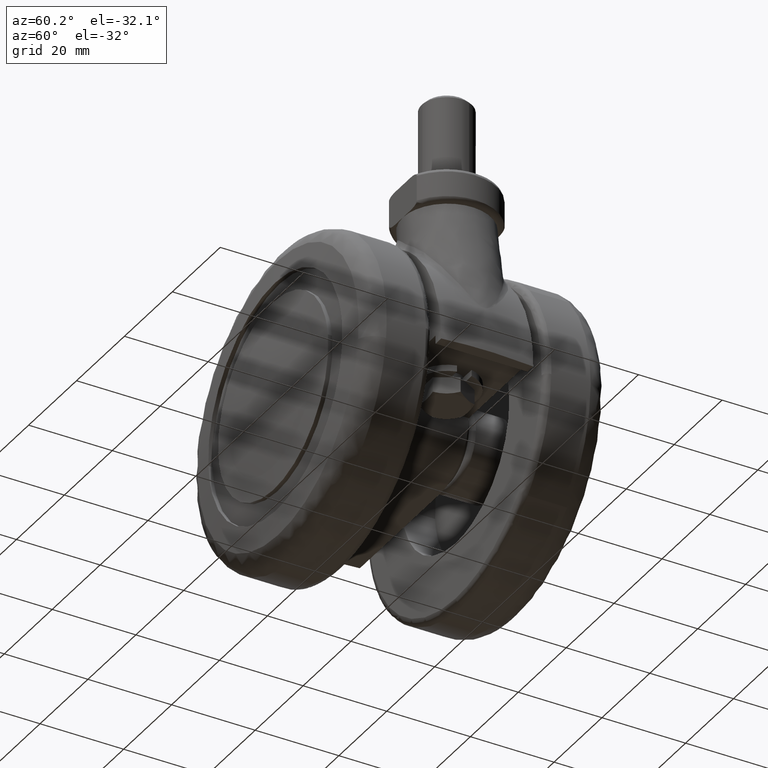
[diagram: clean part render]
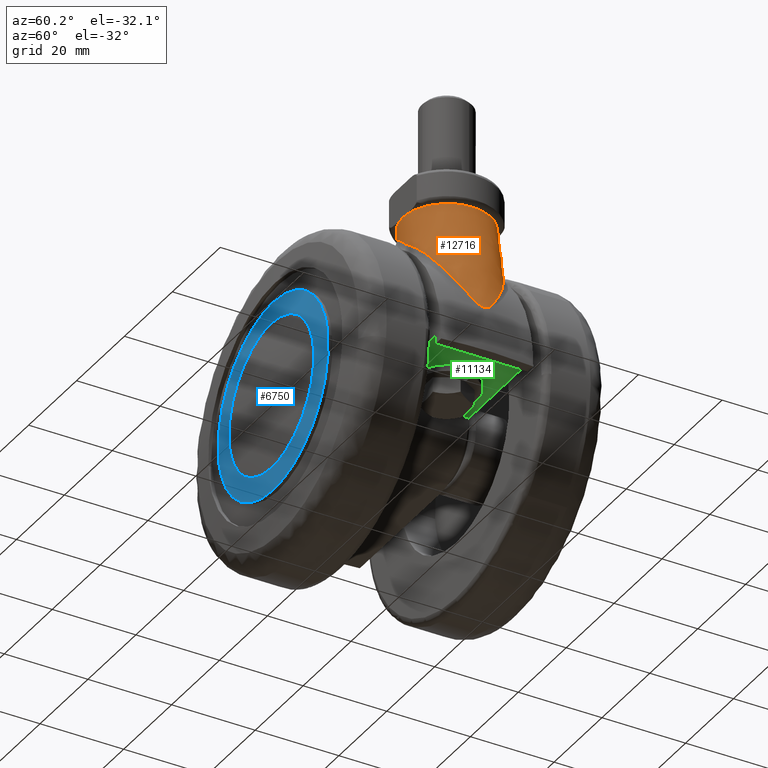
[diagram: same view with three faces highlighted in distinct colors, each labeled with its STEP entity id]
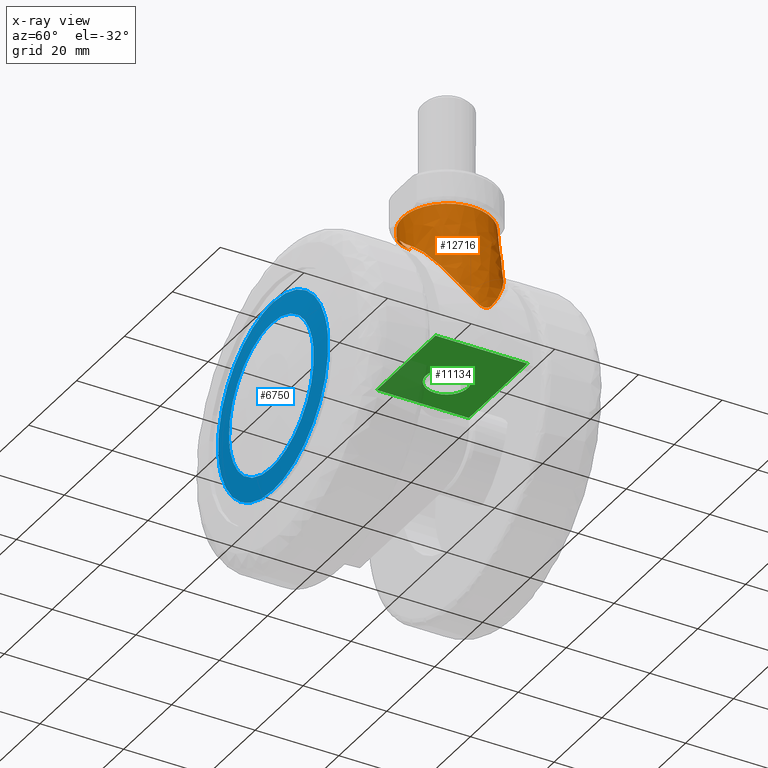
[diagram: x-ray of the same camera — body ghosted, the three highlighted faces saturated]
A machine part, auxiliary view with three faces highlighted in distinct colors.
The next image is the same camera in x-ray (body ghosted, the three faces saturated) — at least one of them is partly hidden behind the body in this view.
Their STEP definitions:

[orange] entity #12716 — the highlighted face is a freeform B-spline surface patch.
#11209=CARTESIAN_POINT('',(9.734874135307969,2.875159400437090,39.0));
#11210=VERTEX_POINT('',#11209);
#11247=CARTESIAN_POINT('',(9.734874135308280,-2.875159400438115,39.0));
#11248=VERTEX_POINT('',#11247);
#11380=CARTESIAN_POINT('',(15.834273644007199,-9.424800640168330,36.042992598005412));
#11381=VERTEX_POINT('',#11380);
#11397=CARTESIAN_POINT('',(9.734874135308280,-2.875159400438115,39.0));
#11398=CARTESIAN_POINT('',(9.765014946852586,-2.971725987100927,38.987961932139498));
#11399=CARTESIAN_POINT('',(9.796699416023380,-3.067957749255542,38.975272131350849));
#11400=CARTESIAN_POINT('',(9.863174507820219,-3.259745863016546,38.948558339544078));
#11401=CARTESIAN_POINT('',(9.898041406330020,-3.355497784002150,38.934503446514952));
#11402=CARTESIAN_POINT('',(10.006728428578230,-3.640148634965251,38.890530961459071));
#11403=CARTESIAN_POINT('',(10.084478166912660,-3.826137806987287,38.858870211924213));
#11404=CARTESIAN_POINT('',(10.332785888984800,-4.373272351155762,38.756894622463513));
#11405=CARTESIAN_POINT('',(10.518355652744630,-4.723619845631813,38.679613890553057));
#11406=CARTESIAN_POINT('',(10.926585075179609,-5.397147074816104,38.505940396580783));
#11407=CARTESIAN_POINT('',(11.149259347742349,-5.720317123013894,38.409544060022732));
#11408=CARTESIAN_POINT('',(11.509890872524030,-6.185149551346111,38.249585396609803));
#11409=CARTESIAN_POINT('',(11.634547182277871,-6.336766173946026,38.193698887509989));
#11410=CARTESIAN_POINT('',(11.828122530780670,-6.559198968923881,38.105833937558728));
#11411=CARTESIAN_POINT('',(11.893575072163550,-6.632308580095542,38.075950026399113));
#11412=CARTESIAN_POINT('',(12.025779794831941,-6.775953905039536,38.015215864299982));
#11413=CARTESIAN_POINT('',(12.092608204217830,-6.846577595190703,37.984331051875913));
#11414=CARTESIAN_POINT('',(12.430248689094460,-7.193857892863472,37.827311391866182));
#11415=CARTESIAN_POINT('',(12.711520939718110,-7.453052229230631,37.693405138172643));
#11416=CARTESIAN_POINT('',(13.293633666889081,-7.937272633191943,37.408568752348373));
#11417=CARTESIAN_POINT('',(13.594484183909090,-8.162284788316734,37.257635878864043));
#11418=CARTESIAN_POINT('',(14.058920017241670,-8.475670662809202,37.017877502471123));
#11419=CARTESIAN_POINT('',(14.215929892272550,-8.576103517511875,36.935729142439747));
#11420=CARTESIAN_POINT('',(14.454585433310600,-8.720843212216183,36.809069559548931));
#11421=CARTESIAN_POINT('',(14.534762874890280,-8.768162339423656,36.766221692821219));
#11422=CARTESIAN_POINT('',(14.695598953699900,-8.860539796690857,36.679655454487850));
#11423=CARTESIAN_POINT('',(14.776209515660611,-8.905574575668155,36.635963875234751));
#11424=CARTESIAN_POINT('',(15.180156851201581,-9.125156029700733,36.415462183829163));
#11425=CARTESIAN_POINT('',(15.506162540292291,-9.282971687857856,36.232525502262099));
#11426=CARTESIAN_POINT('',(15.834273644007190,-9.424800640168330,36.042992598005377));
#11427=B_SPLINE_CURVE_WITH_KNOTS('',3,(#11397,#11398,#11399,#11400,#11401,#11402,#11403,#11404,#11405,#11406,#11407,#11408,#11409,#11410,#11411,#11412,#11413,#11414,#11415,#11416,#11417,#11418,#11419,#11420,#11421,#11422,#11423,#11424,#11425,#11426),.UNSPECIFIED.,.F.,.U.,(4,2,2,2,2,2,2,2,2,2,2,2,2,2,4),(0.0,0.031250000000000,0.062500000000000,0.125000000000000,0.250000000000000,0.375000000000000,0.437500000000000,0.468750000000001,0.500000000000001,0.625000000000001,0.750000000000002,0.812500000000003,0.843750000000003,0.875000000000003,1.0),.UNSPECIFIED.);
#11428=EDGE_CURVE('',#11248,#11381,#11427,.T.);
#11563=CARTESIAN_POINT('',(15.834272163024050,9.424800000000001,36.042993453493153));
#11564=VERTEX_POINT('',#11563);
#11616=CARTESIAN_POINT('',(15.834272163024030,9.424800000000031,36.042993453493139));
#11617=CARTESIAN_POINT('',(15.507307004264360,9.283466341797638,36.231864388182878));
#11618=CARTESIAN_POINT('',(15.183217956223659,9.126588671450643,36.413732003489862));
#11619=CARTESIAN_POINT('',(14.542307384382291,8.778655094792176,36.763701596248048));
#11620=CARTESIAN_POINT('',(14.225479566498890,8.587615547346342,36.931805288436969));
#11621=CARTESIAN_POINT('',(13.757141502596960,8.272252911238834,37.173708558238673));
#11622=CARTESIAN_POINT('',(13.602896192294541,8.162792457947649,37.252264001329451));
#11623=CARTESIAN_POINT('',(13.298873120510450,7.935196166215691,37.405057824339643));
#11624=CARTESIAN_POINT('',(13.149648062189900,7.817479162857781,37.479019873976704));
#11625=CARTESIAN_POINT('',(12.710647610550110,7.452368673953901,37.693838785172048));
#11626=CARTESIAN_POINT('',(12.429523251913780,7.193045679702175,37.827641975410202));
#11627=CARTESIAN_POINT('',(11.892529837133189,6.640852731537313,38.077384226820762));
#11628=CARTESIAN_POINT('',(11.636648015730801,6.347997167485482,38.193326844980398));
#11629=CARTESIAN_POINT('',(11.274060772394190,5.881437445221686,38.354205244321427));
#11630=CARTESIAN_POINT('',(11.156487775333989,5.720934618763776,38.405764140315988));
#11631=CARTESIAN_POINT('',(10.931703898116970,5.394521469722281,38.503345159788402));
#11632=CARTESIAN_POINT('',(10.824167740370379,5.228237964098526,38.549514434549387));
#11633=CARTESIAN_POINT('',(10.516319186505450,4.720125799719843,38.680475196407713));
#11634=CARTESIAN_POINT('',(10.330719855956330,4.369066170604384,38.757749469488267));
#11635=CARTESIAN_POINT('',(10.083301114738109,3.823368784489873,38.859350381706143));
#11636=CARTESIAN_POINT('',(10.006002576978270,3.638277734453351,38.890824975990952));
#11637=CARTESIAN_POINT('',(9.898124002622998,3.355698993728345,38.934469853992752));
#11638=CARTESIAN_POINT('',(9.863510252711381,3.260681806607597,38.948423123941588));
#11639=CARTESIAN_POINT('',(9.797037506755521,3.068965567155710,38.975136555289090));
#11640=CARTESIAN_POINT('',(9.765141817261602,2.972132460640318,38.987911260823253));
#11641=CARTESIAN_POINT('',(9.734874135307935,2.875159400437097,38.999999999999979));
#11642=B_SPLINE_CURVE_WITH_KNOTS('',3,(#11616,#11617,#11618,#11619,#11620,#11621,#11622,#11623,#11624,#11625,#11626,#11627,#11628,#11629,#11630,#11631,#11632,#11633,#11634,#11635,#11636,#11637,#11638,#11639,#11640,#11641),.UNSPECIFIED.,.F.,.U.,(4,2,2,2,2,2,2,2,2,2,2,2,4),(0.0,0.125000000000000,0.250000000000000,0.312500000000000,0.375000000000000,0.499999999999999,0.624999999999999,0.687499999999999,0.749999999999999,0.875000000000000,0.937500000000000,0.968750000000000,1.0),.UNSPECIFIED.);
#11643=EDGE_CURVE('',#11564,#11210,#11642,.T.);
#11778=CARTESIAN_POINT('',(26.877747129820001,-9.424800640175180,27.080546258881650));
#11779=VERTEX_POINT('',#11778);
#11793=CARTESIAN_POINT('',(15.834273644007199,-9.424800640168330,36.042992598005412));
#11794=CARTESIAN_POINT('',(15.957821354711440,-9.478205239416715,35.971625429012043));
#11795=CARTESIAN_POINT('',(16.080474879437510,-9.528550747649826,35.896862832956977));
#11796=CARTESIAN_POINT('',(16.324467108684779,-9.623992687113347,35.741863585670067));
#11797=CARTESIAN_POINT('',(16.445983128545819,-9.669145522698260,35.661493388375632));
#11798=CARTESIAN_POINT('',(16.807137740395639,-9.796993914353118,35.414900180527688));
#11799=CARTESIAN_POINT('',(17.043792159563601,-9.872324009430907,35.243068456802533));
#11800=CARTESIAN_POINT('',(17.511979131786639,-10.007517437380070,34.889408490841298));
#11801=CARTESIAN_POINT('',(17.743479453118120,-10.067340560872999,34.707530818160052));
#11802=CARTESIAN_POINT('',(18.203417960249471,-10.174012160180320,34.336919483093517));
#11803=CARTESIAN_POINT('',(18.431842068133388,-10.220845274567351,34.148164750146591));
#11804=CARTESIAN_POINT('',(19.115173493928289,-10.344224146907150,33.575455915896342));
#11805=CARTESIAN_POINT('',(19.568077975353820,-10.403924809309640,33.185045392206490));
#11806=CARTESIAN_POINT('',(20.254297257199109,-10.463318131576340,32.600818806073363));
#11807=CARTESIAN_POINT('',(20.484200670487759,-10.478015731930860,32.406315361619733));
#11808=CARTESIAN_POINT('',(20.948082477971621,-10.496936920969111,32.019887235590367));
#11809=CARTESIAN_POINT('',(21.181613247936081,-10.501128212349981,31.828390078726208));
#11810=CARTESIAN_POINT('',(21.651974266879410,-10.498353798498240,31.450719061633372));
#11811=CARTESIAN_POINT('',(21.888948934563899,-10.491378916135430,31.264461591440689));
#11812=CARTESIAN_POINT('',(22.366058364612499,-10.465482318906830,30.896595462039809));
#11813=CARTESIAN_POINT('',(22.606185940065220,-10.446543312471061,30.714978512259570));
#11814=CARTESIAN_POINT('',(23.087628156215491,-10.396226099192480,30.353899025347740));
#11815=CARTESIAN_POINT('',(23.328820060684759,-10.364833037135890,30.174466953646689));
#11816=CARTESIAN_POINT('',(23.807325686735791,-10.290260054598820,29.815524759570071));
#11817=CARTESIAN_POINT('',(24.044856317711229,-10.247063046173491,29.635799242685401));
#11818=CARTESIAN_POINT('',(24.513553743951650,-10.150110281188031,29.272082182400400));
#11819=CARTESIAN_POINT('',(24.744711185984290,-10.096363775777590,29.088077066893941));
#11820=CARTESIAN_POINT('',(25.198355848847431,-9.980108177675335,28.712597097372079));
#11821=CARTESIAN_POINT('',(25.420844559444390,-9.917606668684879,28.521121735042559));
#11822=CARTESIAN_POINT('',(26.072977574327620,-9.720033512811925,27.931885441177410));
#11823=CARTESIAN_POINT('',(26.487067933749760,-9.574930112454259,27.519047386537139));
#11824=CARTESIAN_POINT('',(26.877747129820001,-9.424800640175189,27.080546258881650));
#11825=B_SPLINE_CURVE_WITH_KNOTS('',3,(#11793,#11794,#11795,#11796,#11797,#11798,#11799,#11800,#11801,#11802,#11803,#11804,#11805,#11806,#11807,#11808,#11809,#11810,#11811,#11812,#11813,#11814,#11815,#11816,#11817,#11818,#11819,#11820,#11821,#11822,#11823,#11824),.UNSPECIFIED.,.F.,.U.,(4,2,2,2,2,2,2,2,2,2,2,2,2,2,2,4),(0.0,0.031250000000000,0.062500000000000,0.125000000000001,0.187500000000001,0.250000000000002,0.375000000000001,0.437500000000001,0.500000000000001,0.562500000000001,0.625000000000001,0.687500000000000,0.750000000000000,0.812500000000000,0.875000000000000,1.0),.UNSPECIFIED.);
#11826=EDGE_CURVE('',#11381,#11779,#11825,.T.);
#11973=CARTESIAN_POINT('',(26.877748795748751,9.424799999995100,27.080544389031001));
#11974=VERTEX_POINT('',#11973);
#12004=CARTESIAN_POINT('',(26.877748795748751,9.424799999995100,27.080544389031001));
#12005=CARTESIAN_POINT('',(26.682718876187860,9.499745755344520,27.299447416595552));
#12006=CARTESIAN_POINT('',(26.481465353257661,9.573607309741529,27.512523616480969));
#12007=CARTESIAN_POINT('',(26.066787894455910,9.717050936288310,27.928022532611632));
#12008=CARTESIAN_POINT('',(25.853336953272510,9.786636509087694,28.130457885396108));
#12009=CARTESIAN_POINT('',(25.415140902445700,9.919273914150599,28.526157222115760));
#12010=CARTESIAN_POINT('',(25.191329411526930,9.982033202201258,28.718577423111249));
#12011=CARTESIAN_POINT('',(24.736054925331111,10.098453424623250,29.095071037110859));
#12012=CARTESIAN_POINT('',(24.504592552751919,10.152107174813739,29.279146244065000));
#12013=CARTESIAN_POINT('',(23.802351257756559,10.296932086798259,29.823760043387740));
#12014=CARTESIAN_POINT('',(23.323760361359810,10.371564941290799,30.176796451656120));
#12015=CARTESIAN_POINT('',(22.607686369263920,10.446377572934701,30.713854826430779));
#12016=CARTESIAN_POINT('',(22.369313103663561,10.465227416849320,30.894130738877660));
#12017=CARTESIAN_POINT('',(21.895170549245559,10.491117921585261,31.259619758134068));
#12018=CARTESIAN_POINT('',(21.659410274425799,10.498175090193710,31.444841883717320));
#12019=CARTESIAN_POINT('',(21.191001632184989,10.501202925716020,31.820760718128330));
#12020=CARTESIAN_POINT('',(20.958337976881040,10.497188361497100,32.011436115512872));
#12021=CARTESIAN_POINT('',(20.495219450878022,10.478624543567680,32.397047634650313));
#12022=CARTESIAN_POINT('',(20.264490430559849,10.464058058363230,32.592173348219930));
#12023=CARTESIAN_POINT('',(19.575056798251069,10.404805123758200,33.179039204875792));
#12024=CARTESIAN_POINT('',(19.119591456805122,10.344987543313650,33.571736357177272));
#12025=CARTESIAN_POINT('',(18.545917480104329,10.241450666327291,34.052560535722492));
#12026=CARTESIAN_POINT('',(18.430967173202362,10.219280366301239,34.148220694782999));
#12027=CARTESIAN_POINT('',(18.200396153839350,10.171823899536180,34.338215933835301));
#12028=CARTESIAN_POINT('',(18.084732315139700,10.146526009898849,34.432585002583458));
#12029=CARTESIAN_POINT('',(17.737271274486101,10.065818068179340,34.712469915354831));
#12030=CARTESIAN_POINT('',(17.504757973977451,10.005578655706380,34.895009630076260));
#12031=CARTESIAN_POINT('',(17.036261468500431,9.869998355577170,35.248605640971391));
#12032=CARTESIAN_POINT('',(16.800301283999531,9.794688050880897,35.419707433083893));
#12033=CARTESIAN_POINT('',(16.322589059547440,9.625347514085167,35.745603354388983));
#12034=CARTESIAN_POINT('',(16.080902121114949,9.531408038396261,35.900528027256840));
#12035=CARTESIAN_POINT('',(15.834272163024050,9.424799999999999,36.042993453493153));
#12036=B_SPLINE_CURVE_WITH_KNOTS('',3,(#12004,#12005,#12006,#12007,#12008,#12009,#12010,#12011,#12012,#12013,#12014,#12015,#12016,#12017,#12018,#12019,#12020,#12021,#12022,#12023,#12024,#12025,#12026,#12027,#12028,#12029,#12030,#12031,#12032,#12033,#12034,#12035),.UNSPECIFIED.,.F.,.U.,(4,2,2,2,2,2,2,2,2,2,2,2,2,2,2,4),(0.0,0.062500000000000,0.125000000000000,0.187500000000000,0.249999999999999,0.374999999999999,0.437500000000000,0.499999999999999,0.562499999999999,0.624999999999999,0.749999999999999,0.781249999999999,0.812499999999999,0.874999999999999,0.937500000000000,1.0),.UNSPECIFIED.);
#12037=EDGE_CURVE('',#11974,#11564,#12036,.T.);
#12417=CARTESIAN_POINT('',(26.877747129820008,-9.424800640175176,27.080546258881661));
#12418=CARTESIAN_POINT('',(27.431538442782720,-9.211990753977187,26.458966855845620));
#12419=CARTESIAN_POINT('',(27.964202587116660,-8.973502268622996,25.825171062186168));
#12420=CARTESIAN_POINT('',(28.604584162462050,-8.647189486484791,25.017391968762102));
#12421=CARTESIAN_POINT('',(28.731483164926789,-8.580455529879796,24.854930197936248));
#12422=CARTESIAN_POINT('',(28.981951110527600,-8.444668674251791,24.529490922650950));
#12423=CARTESIAN_POINT('',(29.105589420005320,-8.375583818275683,24.366429850494580));
#12424=CARTESIAN_POINT('',(29.471822995071939,-8.164898623419768,23.876211893973640));
#12425=CARTESIAN_POINT('',(29.709739943627682,-8.019872923363041,23.548019389902990));
#12426=CARTESIAN_POINT('',(30.405501028872120,-7.572039584883481,22.559247660703800));
#12427=CARTESIAN_POINT('',(30.845394492563749,-7.256559592287999,21.894454684848021));
#12428=CARTESIAN_POINT('',(31.680096981457069,-6.594809048670595,20.553756699998900));
#12429=CARTESIAN_POINT('',(32.074902435686070,-6.248579766389152,19.877828519127441));
#12430=CARTESIAN_POINT('',(32.821011611255983,-5.525273461557999,18.515830668020708));
#12431=CARTESIAN_POINT('',(33.172329845116813,-5.148372155787472,17.829680010591371));
#12432=CARTESIAN_POINT('',(33.666881889292021,-4.555450108878508,16.795229030595301));
#12433=CARTESIAN_POINT('',(33.826317809313068,-4.353161984810021,16.449561672571068));
#12434=CARTESIAN_POINT('',(34.057216968387202,-4.041137503705516,15.930533042039110));
#12435=CARTESIAN_POINT('',(34.132863893716021,-3.935602190719856,15.757303619787841));
#12436=CARTESIAN_POINT('',(34.281016338526690,-3.721695765924499,15.411684052932740));
#12437=CARTESIAN_POINT('',(34.353520631630232,-3.613336033889618,15.239302616754610));
#12438=CARTESIAN_POINT('',(34.566222244021539,-3.283226178871517,14.724001996539361));
#12439=CARTESIAN_POINT('',(34.701648171116481,-3.056667706511357,14.382778651070771));
#12440=CARTESIAN_POINT('',(34.894342094140931,-2.701091745995821,13.878481767676639));
#12441=CARTESIAN_POINT('',(34.956825466216557,-2.579903623405108,13.711665614736511));
#12442=CARTESIAN_POINT('',(35.077971871825028,-2.330213766607822,13.381933413613741));
#12443=CARTESIAN_POINT('',(35.136641673410637,-2.201748444029421,13.218993240507880));
#12444=CARTESIAN_POINT('',(35.249576827492362,-1.934088800688256,12.899295393268689));
#12445=CARTESIAN_POINT('',(35.303861760722199,-1.794997416866220,12.742469688979419));
#12446=CARTESIAN_POINT('',(35.368217632899643,-1.610230814857686,12.553094733965359));
#12447=CARTESIAN_POINT('',(35.380911230217620,-1.572718728327919,12.515561634184751));
#12448=CARTESIAN_POINT('',(35.405910720135907,-1.496398779252959,12.441297537588930));
#12449=CARTESIAN_POINT('',(35.418020964106447,-1.458199946100822,12.405149484725991));
#12450=CARTESIAN_POINT('',(35.453691948504670,-1.341565761685799,12.298201919726941));
#12451=CARTESIAN_POINT('',(35.476420259459381,-1.261646798127146,12.229406438960821));
#12452=CARTESIAN_POINT('',(35.519289239817176,-1.096013088224957,12.098598698932131));
#12453=CARTESIAN_POINT('',(35.539436255438687,-1.010315780983556,12.036565557280770));
#12454=CARTESIAN_POINT('',(35.567136391223393,-0.875701160165791,11.950680440214260));
#12455=CARTESIAN_POINT('',(35.575946885378023,-0.829810186276578,11.923255763860720));
#12456=CARTESIAN_POINT('',(35.592574041143003,-0.735558819740049,11.871332191317340));
#12457=CARTESIAN_POINT('',(35.600354976354772,-0.687362793959521,11.846944474813430));
#12458=CARTESIAN_POINT('',(35.621606953361990,-0.540805455704454,11.780154126468251));
#12459=CARTESIAN_POINT('',(35.633115029512680,-0.439894444457601,11.743727535161460));
#12460=CARTESIAN_POINT('',(35.645244239294229,-0.282151516227890,11.705247612194620));
#12461=CARTESIAN_POINT('',(35.648434303076847,-0.228140666050046,11.695105868471780));
#12462=CARTESIAN_POINT('',(35.652763559126470,-0.120326570985241,11.681334893076240));
#12463=CARTESIAN_POINT('',(35.655091479442483,-0.012414598757058,11.673920024388311));
#12464=CARTESIAN_POINT('',(35.653379898782369,0.095695463206858,11.679372466048250));
#12465=CARTESIAN_POINT('',(35.649642918377737,0.203904650513568,11.691262529394360));
#12466=CARTESIAN_POINT('',(35.646742690597392,0.258172001876218,11.700486541995209));
#12467=CARTESIAN_POINT('',(35.635320981754923,0.417763529179566,11.736739591887710));
#12468=CARTESIAN_POINT('',(35.624237780899662,0.519053412661900,11.771844652234931));
#12469=CARTESIAN_POINT('',(35.596879178469003,0.714214608126808,11.857901044839320));
#12470=CARTESIAN_POINT('',(35.580585513783362,0.808108924292738,11.908906042575021));
#12471=CARTESIAN_POINT('',(35.543942657962333,0.990179285052904,12.022652358762860));
#12472=CARTESIAN_POINT('',(35.523761636809468,1.077476388913930,12.084866441674780));
#12473=CARTESIAN_POINT('',(35.480947814145189,1.245172783340882,12.215660554732180));
#12474=CARTESIAN_POINT('',(35.458276699272787,1.325749483891231,12.284362802042629));
#12475=CARTESIAN_POINT('',(35.410912067271347,1.482121665265557,12.426539637664630));
#12476=CARTESIAN_POINT('',(35.386214902507419,1.557905335473423,12.500026462926160));
#12477=CARTESIAN_POINT('',(35.335111577677232,1.705810873732908,12.650601882537149));
#12478=CARTESIAN_POINT('',(35.308763989078457,1.777747623143219,12.727517222777919));
#12479=CARTESIAN_POINT('',(35.254854318391253,1.918079165636043,12.883342488891300));
#12480=CARTESIAN_POINT('',(35.227263317727733,1.986549933592995,12.962338308113461));
#12481=CARTESIAN_POINT('',(35.142778291691187,2.187928025212838,13.201831102181551));
#12482=CARTESIAN_POINT('',(35.084182961239861,2.316856596977297,13.364794262256330));
#12483=CARTESIAN_POINT('',(34.963074996485723,2.567524465172267,13.694866985063010));
#12484=CARTESIAN_POINT('',(34.900555304814063,2.689227999900667,13.862001739584970));
#12485=CARTESIAN_POINT('',(34.707609414133422,3.046410352024187,14.367586642073720));
#12486=CARTESIAN_POINT('',(34.571752802226420,3.274201787549714,14.710258865316010));
#12487=CARTESIAN_POINT('',(34.288069493437490,3.715339576600409,15.398198998860909));
#12488=CARTESIAN_POINT('',(34.140082122857471,3.928812709793438,15.743932678077041));
#12489=CARTESIAN_POINT('',(33.909178162264752,4.241351994539437,16.263459606894688));
#12490=CARTESIAN_POINT('',(33.830719327983530,4.344229585799865,16.436802820028451));
#12491=CARTESIAN_POINT('',(33.670835731075947,4.547667035015350,16.783653205842999));
#12492=CARTESIAN_POINT('',(33.589421854072420,4.648208145568536,16.957132928914579));
#12493=CARTESIAN_POINT('',(33.175826281998312,5.144602696009164,17.822825061016552));
#12494=CARTESIAN_POINT('',(32.823463147485157,5.522788738589746,18.511223609952982));
#12495=CARTESIAN_POINT('',(32.075729280058567,6.247885830936366,19.876450424017161));
#12496=CARTESIAN_POINT('',(31.680343243807020,6.594612658503806,20.553359710029738));
#12497=CARTESIAN_POINT('',(30.845191428148681,7.256721735154597,21.894782290279160));
#12498=CARTESIAN_POINT('',(30.405428036939281,7.572059876591542,22.559318776025570));
#12499=CARTESIAN_POINT('',(29.479036670757431,8.168393969164134,23.875912892376810));
#12500=CARTESIAN_POINT('',(28.992421027983280,8.449392945262121,24.527976763812401));
#12501=CARTESIAN_POINT('',(28.352464205908571,8.775701497513698,25.335465013284331));
#12502=CARTESIAN_POINT('',(28.222797754502910,8.839750526720344,25.496690012436598));
#12503=CARTESIAN_POINT('',(27.960608976820659,8.965035527062273,25.817904851214958));
#12504=CARTESIAN_POINT('',(27.828260137555080,9.026191393719129,25.977685420690118));
#12505=CARTESIAN_POINT('',(27.427425778246128,9.205066688061944,26.454558490136790));
#12506=CARTESIAN_POINT('',(27.155154133149100,9.318199163588842,26.769182581795860));
#12507=CARTESIAN_POINT('',(26.877748795748719,9.424799999995120,27.080544389031012));
#12508=B_SPLINE_CURVE_WITH_KNOTS('',3,(#12417,#12418,#12419,#12420,#12421,#12422,#12423,#12424,#12425,#12426,#12427,#12428,#12429,#12430,#12431,#12432,#12433,#12434,#12435,#12436,#12437,#12438,#12439,#12440,#12441,#12442,#12443,#12444,#12445,#12446,#12447,#12448,#12449,#12450,#12451,#12452,#12453,#12454,#12455,#12456,#12457,#12458,#12459,#12460,#12461,#12462,#12463,#12464,#12465,#12466,#12467,#12468,#12469,#12470,#12471,#12472,#12473,#12474,#12475,#12476,#12477,#12478,#12479,#12480,#12481,#12482,#12483,#12484,#12485,#12486,#12487,#12488,#12489,#12490,#12491,#12492,#12493,#12494,#12495,#12496,#12497,#12498,#12499,#12500,#12501,#12502,#12503,#12504,#12505,#12506,#12507),.UNSPECIFIED.,.F.,.U.,(4,2,2,2,2,2,2,2,2,2,2,2,2,2,2,2,2,2,2,2,2,2,2,1,2,2,2,2,2,2,2,2,2,2,2,2,2,2,2,2,2,2,2,2,2,4),(0.0,0.062500000000000,0.078125000000000,0.093750000000001,0.125000000000001,0.187500000000002,0.250000000000002,0.312500000000003,0.343750000000004,0.359375000000004,0.375000000000004,0.406250000000004,0.421875000000004,0.437500000000004,0.453125000000004,0.457031250000004,0.460937500000004,0.468750000000004,0.476562500000004,0.480468750000004,0.484375000000004,0.492187500000004,0.496093750000004,0.500000000000004,0.503906250000004,0.507812500000004,0.515625000000004,0.523437500000004,0.531250000000004,0.539062500000004,0.546875000000004,0.554687500000004,0.562500000000004,0.578125000000003,0.593750000000003,0.625000000000003,0.656250000000003,0.671875000000003,0.687500000000003,0.750000000000002,0.812500000000002,0.875000000000001,0.937500000000001,0.953125000000001,0.968750000000000,1.0),.UNSPECIFIED.);
#12509=EDGE_CURVE('',#11779,#11974,#12508,.T.);
#12520=CARTESIAN_POINT('',(9.734874135308228,-2.875159400438114,39.0));
#12521=CARTESIAN_POINT('',(12.277823730973108,-11.662172655083738,39.0));
#12522=CARTESIAN_POINT('',(21.475438907018340,-10.399187534074770,39.0));
#12523=CARTESIAN_POINT('',(30.673054083063175,-9.136202413065858,39.0));
#12524=CARTESIAN_POINT('',(30.673054083063182,4.637220E-013,39.0));
#12525=CARTESIAN_POINT('',(30.673054083063175,9.136202413066656,39.0));
#12526=CARTESIAN_POINT('',(21.475438907017431,10.399187534074899,39.0));
#12527=CARTESIAN_POINT('',(12.277823730972070,11.662172655083083,39.0));
#12528=CARTESIAN_POINT('',(9.734874135307969,2.875159400437090,39.0));
#12536=(BOUNDED_CURVE()B_SPLINE_CURVE(2,(#12520,#12521,#12522,#12523,#12524,#12525,#12526,#12527,#12528),.UNSPECIFIED.,.F.,.U.)B_SPLINE_CURVE_WITH_KNOTS((3,2,2,2,3),(0.0,0.250000000000000,0.500000000000000,0.750000000000000,1.0),.UNSPECIFIED.)CURVE()GEOMETRIC_REPRESENTATION_ITEM()RATIONAL_B_SPLINE_CURVE((1.0,0.754400297204961,1.0,0.754400297204961,1.0,0.754400297204961,1.0,0.754400297204961,1.0))REPRESENTATION_ITEM(''));
#12537=EDGE_CURVE('',#11248,#11210,#12536,.T.);
#12682=CARTESIAN_POINT('',(9.569205849360891,-2.786923381530203,39.770999880177428));
#12683=CARTESIAN_POINT('',(15.509994858940340,-2.786923381530203,7.183522043397875));
#12684=CARTESIAN_POINT('',(11.994888865837741,-11.743343718323672,40.213208727305350));
#12685=CARTESIAN_POINT('',(17.935677875417188,-11.743343718323670,7.625730890525802));
#12686=CARTESIAN_POINT('',(21.036027857876501,-10.387573925126540,41.861433834722632));
#12687=CARTESIAN_POINT('',(26.976816867455948,-10.387573925126540,9.273955997943078));
#12688=CARTESIAN_POINT('',(30.077166849915269,-9.031804131929402,43.509658942139907));
#12689=CARTESIAN_POINT('',(36.017955859494705,-9.031804131929404,10.922181105360355));
#12690=CARTESIAN_POINT('',(29.855159178627289,0.255069753875002,43.469186318261620));
#12691=CARTESIAN_POINT('',(35.795948188206737,0.255069753875002,10.881708481482070));
#12692=CARTESIAN_POINT('',(29.633151507339310,9.541943639679406,43.428713694383333));
#12693=CARTESIAN_POINT('',(35.573940516918775,9.541943639679406,10.841235857603785));
#12694=CARTESIAN_POINT('',(20.537900657039021,10.449744291981061,41.770623842770199));
#12695=CARTESIAN_POINT('',(26.478689666618472,10.449744291981061,9.183146005990647));
#12696=CARTESIAN_POINT('',(11.442649806738716,11.357544944282711,40.112533991157065));
#12697=CARTESIAN_POINT('',(17.383438816318165,11.357544944282720,7.525056154377508));
#12698=CARTESIAN_POINT('',(9.447792979564273,2.291937197355839,39.748865971989680));
#12699=CARTESIAN_POINT('',(15.388581989143720,2.291937197355846,7.161388135210130));
#12707=(BOUNDED_SURFACE()B_SPLINE_SURFACE(1,2,((#12682,#12684,#12686,#12688,#12690,#12692,#12694,#12696,#12698),(#12683,#12685,#12687,#12689,#12691,#12693,#12695,#12697,#12699)),.UNSPECIFIED.,.F.,.F.,.U.)B_SPLINE_SURFACE_WITH_KNOTS((2,2),(3,2,2,2,3),(0.0,33.124563179292473),(0.0,15.912376565203189,31.824753130406378,47.737129695609582,63.649506260812757),.UNSPECIFIED.)GEOMETRIC_REPRESENTATION_ITEM()RATIONAL_B_SPLINE_SURFACE(((1.0,0.748955720789002,1.0,0.748955720789002,1.0,0.748955720789002,1.0,0.748955720789002,1.0),(1.0,0.748955720789002,1.0,0.748955720789002,1.0,0.748955720789002,1.0,0.748955720789002,1.0)))REPRESENTATION_ITEM('')SURFACE());
#12708=ORIENTED_EDGE('',*,*,#12537,.F.);
#12709=ORIENTED_EDGE('',*,*,#11428,.T.);
#12710=ORIENTED_EDGE('',*,*,#11826,.T.);
#12711=ORIENTED_EDGE('',*,*,#12509,.T.);
#12712=ORIENTED_EDGE('',*,*,#12037,.T.);
#12713=ORIENTED_EDGE('',*,*,#11643,.T.);
#12714=EDGE_LOOP('',(#12708,#12709,#12710,#12711,#12712,#12713));
#12715=FACE_OUTER_BOUND('',#12714,.T.);
#12716=ADVANCED_FACE('',(#12715),#12707,.T.);

[blue] entity #6750 — the highlighted face is a freeform B-spline surface patch.
#5443=CARTESIAN_POINT('',(22.839223200142978,-30.067118747285200,2.714752956135744));
#5444=VERTEX_POINT('',#5443);
#5450=CARTESIAN_POINT('',(0.0,-30.067118747285200,-23.0));
#5451=VERTEX_POINT('',#5450);
#5452=CARTESIAN_POINT('',(22.839223200142978,-30.067118747285203,2.714752956135745));
#5453=CARTESIAN_POINT('',(23.0,-30.067118747285200,1.362137349460211));
#5454=CARTESIAN_POINT('',(23.0,-30.067118747285200,0.0));
#5455=CARTESIAN_POINT('',(22.999999999999993,-30.067118747285203,-22.999999999999993));
#5456=CARTESIAN_POINT('',(0.0,-30.067118747285200,-23.0));
#5464=(BOUNDED_CURVE()B_SPLINE_CURVE(2,(#5452,#5453,#5454,#5455,#5456),.UNSPECIFIED.,.F.,.U.)B_SPLINE_CURVE_WITH_KNOTS((3,2,3),(0.229562728368329,0.250000000000000,0.500000000000000),.UNSPECIFIED.)CURVE()GEOMETRIC_REPRESENTATION_ITEM()RATIONAL_B_SPLINE_CURVE((0.956027253710185,0.976056246912140,1.0,0.707106781186548,1.0))REPRESENTATION_ITEM(''));
#5465=EDGE_CURVE('',#5444,#5451,#5464,.T.);
#5467=CARTESIAN_POINT('',(-22.957102559576530,-30.067118747285200,-1.404080506164392));
#5468=VERTEX_POINT('',#5467);
#5469=CARTESIAN_POINT('',(0.0,-30.067118747285200,-23.0));
#5470=CARTESIAN_POINT('',(-21.636273439496890,-30.067118747285207,-23.000000000000004));
#5471=CARTESIAN_POINT('',(-22.957102559576523,-30.067118747285196,-1.404080506164392));
#5479=(BOUNDED_CURVE()B_SPLINE_CURVE(2,(#5469,#5470,#5471),.UNSPECIFIED.,.F.,.U.)B_SPLINE_CURVE_WITH_KNOTS((3,3),(0.500000000000000,0.739333232091916),.UNSPECIFIED.)CURVE()GEOMETRIC_REPRESENTATION_ITEM()RATIONAL_B_SPLINE_CURVE((1.0,0.719603677134287,0.976072620013690))REPRESENTATION_ITEM(''));
#5480=EDGE_CURVE('',#5451,#5468,#5479,.T.);
#5558=CARTESIAN_POINT('',(0.0,-30.067118747285200,23.0));
#5559=VERTEX_POINT('',#5558);
#5560=CARTESIAN_POINT('',(-22.957102559576523,-30.067118747285196,-1.404080506164392));
#5561=CARTESIAN_POINT('',(-23.000000000000004,-30.067118747285196,-0.702695553966587));
#5562=CARTESIAN_POINT('',(-23.0,-30.067118747285200,0.0));
#5563=CARTESIAN_POINT('',(-22.999999999999993,-30.067118747285203,22.999999999999993));
#5564=CARTESIAN_POINT('',(0.0,-30.067118747285200,23.0));
#5572=(BOUNDED_CURVE()B_SPLINE_CURVE(2,(#5560,#5561,#5562,#5563,#5564),.UNSPECIFIED.,.F.,.U.)B_SPLINE_CURVE_WITH_KNOTS((3,2,3),(0.739333232091916,0.750000000000000,1.0),.UNSPECIFIED.)CURVE()GEOMETRIC_REPRESENTATION_ITEM()RATIONAL_B_SPLINE_CURVE((0.976072620013690,0.987503104052261,1.0,0.707106781186548,1.0))REPRESENTATION_ITEM(''));
#5573=EDGE_CURVE('',#5468,#5559,#5572,.T.);
#5575=CARTESIAN_POINT('',(0.0,-30.067118747285200,23.0));
#5576=CARTESIAN_POINT('',(20.428045118686679,-30.067118747285207,22.999999999999993));
#5577=CARTESIAN_POINT('',(22.839223200142978,-30.067118747285203,2.714752956135745));
#5585=(BOUNDED_CURVE()B_SPLINE_CURVE(2,(#5575,#5576,#5577),.UNSPECIFIED.,.F.,.U.)B_SPLINE_CURVE_WITH_KNOTS((3,3),(0.0,0.229562728368329),.UNSPECIFIED.)CURVE()GEOMETRIC_REPRESENTATION_ITEM()RATIONAL_B_SPLINE_CURVE((1.0,0.731050534274408,0.956027253710185))REPRESENTATION_ITEM(''));
#5586=EDGE_CURVE('',#5559,#5444,#5585,.T.);
#5614=CARTESIAN_POINT('',(17.576269484888890,-30.499999552056249,2.089206056700987));
#5615=VERTEX_POINT('',#5614);
#5616=CARTESIAN_POINT('',(0.0,-30.499999552056249,-17.700000874372648));
#5617=VERTEX_POINT('',#5616);
#5618=CARTESIAN_POINT('',(17.576269484888890,-30.499999552056252,2.089206056700987));
#5619=CARTESIAN_POINT('',(17.700000874372648,-30.499999552056249,1.048266969693959));
#5620=CARTESIAN_POINT('',(17.700000874372648,-30.499999552056249,0.0));
#5621=CARTESIAN_POINT('',(17.700000874372648,-30.499999552056252,-17.700000874372648));
#5622=CARTESIAN_POINT('',(0.0,-30.499999552056249,-17.700000874372648));
#5630=(BOUNDED_CURVE()B_SPLINE_CURVE(2,(#5618,#5619,#5620,#5621,#5622),.UNSPECIFIED.,.F.,.U.)B_SPLINE_CURVE_WITH_KNOTS((3,2,3),(0.229562473514289,0.250000000000000,0.500000000000000),.UNSPECIFIED.)CURVE()GEOMETRIC_REPRESENTATION_ITEM()RATIONAL_B_SPLINE_CURVE((0.956026754185230,0.976055948332060,1.0,0.707106781186548,1.0))REPRESENTATION_ITEM(''));
#5631=EDGE_CURVE('',#5615,#5617,#5630,.T.);
#5672=CARTESIAN_POINT('',(-17.666986804803550,-30.499999552056249,-1.080559203232250));
#5673=VERTEX_POINT('',#5672);
#5679=CARTESIAN_POINT('',(0.0,-30.499999552056249,-17.700000874372648));
#5680=CARTESIAN_POINT('',(-16.650498206595842,-30.499999552056252,-17.700000874372659));
#5681=CARTESIAN_POINT('',(-17.666986804803553,-30.499999552056252,-1.080559203232250));
#5689=(BOUNDED_CURVE()B_SPLINE_CURVE(2,(#5679,#5680,#5681),.UNSPECIFIED.,.F.,.U.)B_SPLINE_CURVE_WITH_KNOTS((3,3),(0.500000000000000,0.739332962240286),.UNSPECIFIED.)CURVE()GEOMETRIC_REPRESENTATION_ITEM()RATIONAL_B_SPLINE_CURVE((1.0,0.719603993285136,0.976072041669597))REPRESENTATION_ITEM(''));
#5690=EDGE_CURVE('',#5617,#5673,#5689,.T.);
#5713=CARTESIAN_POINT('',(0.0,-30.499999552056249,17.700000874372648));
#5714=VERTEX_POINT('',#5713);
#5715=CARTESIAN_POINT('',(0.0,-30.499999552056249,17.700000874372648));
#5716=CARTESIAN_POINT('',(15.720689885807799,-30.499999552056252,17.700000874372659));
#5717=CARTESIAN_POINT('',(17.576269484888890,-30.499999552056252,2.089206056700987));
#5725=(BOUNDED_CURVE()B_SPLINE_CURVE(2,(#5715,#5716,#5717),.UNSPECIFIED.,.F.,.U.)B_SPLINE_CURVE_WITH_KNOTS((3,3),(0.0,0.229562473514289),.UNSPECIFIED.)CURVE()GEOMETRIC_REPRESENTATION_ITEM()RATIONAL_B_SPLINE_CURVE((1.0,0.731050832854488,0.956026754185230))REPRESENTATION_ITEM(''));
#5726=EDGE_CURVE('',#5714,#5615,#5725,.T.);
#5728=CARTESIAN_POINT('',(-17.666986804803550,-30.499999552056256,-1.080559203232250));
#5729=CARTESIAN_POINT('',(-17.700000874372648,-30.499999552056256,-0.540783937185873));
#5730=CARTESIAN_POINT('',(-17.700000874372648,-30.499999552056249,0.0));
#5731=CARTESIAN_POINT('',(-17.700000874372648,-30.499999552056252,17.700000874372648));
#5732=CARTESIAN_POINT('',(0.0,-30.499999552056249,17.700000874372648));
#5740=(BOUNDED_CURVE()B_SPLINE_CURVE(2,(#5728,#5729,#5730,#5731,#5732),.UNSPECIFIED.,.F.,.U.)B_SPLINE_CURVE_WITH_KNOTS((3,2,3),(0.739332962240286,0.750000000000000,1.0),.UNSPECIFIED.)CURVE()GEOMETRIC_REPRESENTATION_ITEM()RATIONAL_B_SPLINE_CURVE((0.976072041669597,0.987502787901411,1.0,0.707106781186548,1.0))REPRESENTATION_ITEM(''));
#5741=EDGE_CURVE('',#5673,#5714,#5740,.T.);
#6714=CARTESIAN_POINT('',(-25.221220944015190,-28.569788304266513,-25.221779341968968));
#6715=CARTESIAN_POINT('',(-12.642945083107126,-29.845270349562913,-25.286449995944892));
#6716=CARTESIAN_POINT('',(12.643019374898351,-29.845270349562913,-25.286449995944903));
#6717=CARTESIAN_POINT('',(25.221368389517433,-28.569773352722425,-25.221778583882156));
#6718=CARTESIAN_POINT('',(-25.285893037142486,-29.845326973368479,-12.643226433468371));
#6719=CARTESIAN_POINT('',(-12.675447380365441,-31.127366999999879,-12.675728014831790));
#6720=CARTESIAN_POINT('',(12.675521863144910,-31.127366999999879,-12.675728014831799));
#6721=CARTESIAN_POINT('',(25.286040858774694,-29.845311945048767,-12.643226052478589));
#6722=CARTESIAN_POINT('',(-25.285893037142486,-29.845326973368479,12.643226806828563));
#6723=CARTESIAN_POINT('',(-12.675447380365441,-31.127366999999879,12.675728389151770));
#6724=CARTESIAN_POINT('',(12.675521863144910,-31.127366999999879,12.675728389151759));
#6725=CARTESIAN_POINT('',(25.286040858774694,-29.845311945048767,12.643226425838771));
#6726=CARTESIAN_POINT('',(-25.221220940205388,-28.569788229124750,25.221780082969651));
#6727=CARTESIAN_POINT('',(-12.642945081192433,-29.845270274035279,25.286450738835743));
#6728=CARTESIAN_POINT('',(12.643019372983646,-29.845270274035279,25.286450738835743));
#6729=CARTESIAN_POINT('',(25.221368385707574,-28.569773277580641,25.221779324882792));
#6737=(BOUNDED_SURFACE()B_SPLINE_SURFACE(2,2,((#6714,#6718,#6722,#6726),(#6715,#6719,#6723,#6727),(#6716,#6720,#6724,#6728),(#6717,#6721,#6725,#6729)),.UNSPECIFIED.,.F.,.F.,.U.)B_SPLINE_SURFACE_WITH_KNOTS((3,1,3),(3,1,3),(86.656797497940062,111.362487685095400,136.068323046493500),(86.656250513839723,111.362487685095400,136.068725585937500),.UNSPECIFIED.)GEOMETRIC_REPRESENTATION_ITEM()RATIONAL_B_SPLINE_SURFACE(((1.005141456751975,1.002570671460679,1.002570671460679,1.005141456903807),(1.002570785291296,1.0,1.0,1.002570785443129),(1.002570785291296,1.0,1.0,1.002570785443129),(1.005141486963345,1.002570701672049,1.002570701672049,1.005141487115178)))REPRESENTATION_ITEM('')SURFACE());
#6738=ORIENTED_EDGE('',*,*,#5573,.F.);
#6739=ORIENTED_EDGE('',*,*,#5480,.F.);
#6740=ORIENTED_EDGE('',*,*,#5465,.F.);
#6741=ORIENTED_EDGE('',*,*,#5586,.F.);
#6742=EDGE_LOOP('',(#6738,#6739,#6740,#6741));
#6743=FACE_OUTER_BOUND('',#6742,.T.);
#6744=ORIENTED_EDGE('',*,*,#5690,.T.);
#6745=ORIENTED_EDGE('',*,*,#5741,.T.);
#6746=ORIENTED_EDGE('',*,*,#5726,.T.);
#6747=ORIENTED_EDGE('',*,*,#5631,.T.);
#6748=EDGE_LOOP('',(#6744,#6745,#6746,#6747));
#6749=FACE_BOUND('',#6748,.T.);
#6750=ADVANCED_FACE('',(#6743,#6749),#6737,.T.);

[green] entity #11134 — the highlighted face is a freeform B-spline surface patch.
#9946=CARTESIAN_POINT('',(20.590171173405150,4.965047631803906,2.000000000009549));
#9947=VERTEX_POINT('',#9946);
#9948=CARTESIAN_POINT('',(15.0,0.0,2.000000000009550));
#9949=VERTEX_POINT('',#9948);
#9950=CARTESIAN_POINT('',(20.590171173405150,4.965047631803906,2.000000000009549));
#9951=CARTESIAN_POINT('',(20.296120598382192,4.999999999999999,2.000000000009550));
#9952=CARTESIAN_POINT('',(20.0,5.0,2.000000000009550));
#9953=CARTESIAN_POINT('',(14.999999999999995,5.000000000000001,2.000000000009550));
#9954=CARTESIAN_POINT('',(15.0,0.0,2.000000000009550));
#9962=(BOUNDED_CURVE()B_SPLINE_CURVE(2,(#9950,#9951,#9952,#9953,#9954),.UNSPECIFIED.,.F.,.U.)B_SPLINE_CURVE_WITH_KNOTS((3,2,3),(0.729562473507383,0.750000000000000,1.0),.UNSPECIFIED.)CURVE()GEOMETRIC_REPRESENTATION_ITEM()RATIONAL_B_SPLINE_CURVE((0.956026754171693,0.976055948323968,1.0,0.707106781186548,1.0))REPRESENTATION_ITEM(''));
#9963=EDGE_CURVE('',#9947,#9949,#9962,.T.);
#10004=CARTESIAN_POINT('',(19.694757302031089,-4.990673992091314,2.000000000009549));
#10005=VERTEX_POINT('',#10004);
#10011=CARTESIAN_POINT('',(15.0,0.0,2.000000000009550));
#10012=CARTESIAN_POINT('',(15.000000000000005,-4.703530333972088,2.000000000009550));
#10013=CARTESIAN_POINT('',(19.694757302031086,-4.990673992091314,2.000000000009549));
#10021=(BOUNDED_CURVE()B_SPLINE_CURVE(2,(#10011,#10012,#10013),.UNSPECIFIED.,.F.,.U.)B_SPLINE_CURVE_WITH_KNOTS((3,3),(0.0,0.239332962221596),.UNSPECIFIED.)CURVE()GEOMETRIC_REPRESENTATION_ITEM()RATIONAL_B_SPLINE_CURVE((1.0,0.719603993307034,0.976072041629539))REPRESENTATION_ITEM(''));
#10022=EDGE_CURVE('',#9949,#10005,#10021,.T.);
#10045=CARTESIAN_POINT('',(25.0,0.0,2.000000000009550));
#10046=VERTEX_POINT('',#10045);
#10047=CARTESIAN_POINT('',(25.0,0.0,2.000000000009550));
#10048=CARTESIAN_POINT('',(25.000000000000004,4.440872629538233,2.000000000009550));
#10049=CARTESIAN_POINT('',(20.590171173405142,4.965047631803906,2.000000000009549));
#10057=(BOUNDED_CURVE()B_SPLINE_CURVE(2,(#10047,#10048,#10049),.UNSPECIFIED.,.F.,.U.)B_SPLINE_CURVE_WITH_KNOTS((3,3),(0.500000000000000,0.729562473507383),.UNSPECIFIED.)CURVE()GEOMETRIC_REPRESENTATION_ITEM()RATIONAL_B_SPLINE_CURVE((1.0,0.731050832862579,0.956026754171694))REPRESENTATION_ITEM(''));
#10058=EDGE_CURVE('',#10046,#9947,#10057,.T.);
#10060=CARTESIAN_POINT('',(19.694757302031089,-4.990673992091314,2.000000000009549));
#10061=CARTESIAN_POINT('',(19.847236183211606,-5.0,2.000000000009550));
#10062=CARTESIAN_POINT('',(20.0,-5.0,2.000000000009550));
#10063=CARTESIAN_POINT('',(25.0,-5.000000000000001,2.000000000009550));
#10064=CARTESIAN_POINT('',(25.0,0.0,2.000000000009550));
#10072=(BOUNDED_CURVE()B_SPLINE_CURVE(2,(#10060,#10061,#10062,#10063,#10064),.UNSPECIFIED.,.F.,.U.)B_SPLINE_CURVE_WITH_KNOTS((3,2,3),(0.239332962221596,0.250000000000000,0.500000000000000),.UNSPECIFIED.)CURVE()GEOMETRIC_REPRESENTATION_ITEM()RATIONAL_B_SPLINE_CURVE((0.976072041629539,0.987502787879514,1.0,0.707106781186548,1.0))REPRESENTATION_ITEM(''));
#10073=EDGE_CURVE('',#10005,#10046,#10072,.T.);
#11017=CARTESIAN_POINT('',(34.500000000000000,-11.0,2.0));
#11018=VERTEX_POINT('',#11017);
#11026=CARTESIAN_POINT('',(34.500000000000000,11.0,2.0));
#11027=VERTEX_POINT('',#11026);
#11028=CARTESIAN_POINT('',(34.500000000000000,11.0,2.0));
#11029=CARTESIAN_POINT('',(34.500000000000000,-11.0,2.0));
#11030=QUASI_UNIFORM_CURVE('',1,(#11028,#11029),.UNSPECIFIED.,.F.,.U.);
#11031=EDGE_CURVE('',#11027,#11018,#11030,.T.);
#11064=CARTESIAN_POINT('',(10.0,-11.0,2.0));
#11065=VERTEX_POINT('',#11064);
#11086=CARTESIAN_POINT('',(10.0,11.0,2.0));
#11087=VERTEX_POINT('',#11086);
#11101=CARTESIAN_POINT('',(10.0,11.0,2.0));
#11102=CARTESIAN_POINT('',(10.0,-11.0,2.0));
#11103=QUASI_UNIFORM_CURVE('',1,(#11101,#11102),.UNSPECIFIED.,.F.,.U.);
#11104=EDGE_CURVE('',#11087,#11065,#11103,.T.);
#11109=CARTESIAN_POINT('',(35.723774952514241,-12.098899957359730,2.0));
#11110=CARTESIAN_POINT('',(8.776224390344547,-12.098899957359730,2.0));
#11111=CARTESIAN_POINT('',(35.723774952514241,12.098900547445711,2.0));
#11112=CARTESIAN_POINT('',(8.776224390344547,12.098900547445711,2.0));
#11113=B_SPLINE_SURFACE_WITH_KNOTS('',1,1,((#11109,#11111),(#11110,#11112)),.UNSPECIFIED.,.F.,.F.,.U.,(2,2),(2,2),(0.0,26.947550562169699),(0.0,24.197800504805439),.UNSPECIFIED.);
#11114=CARTESIAN_POINT('',(10.0,-11.0,2.0));
#11115=CARTESIAN_POINT('',(34.500000000000000,-11.0,2.0));
#11116=QUASI_UNIFORM_CURVE('',1,(#11114,#11115),.UNSPECIFIED.,.F.,.U.);
#11117=EDGE_CURVE('',#11065,#11018,#11116,.T.);
#11118=ORIENTED_EDGE('',*,*,#11117,.F.);
#11119=ORIENTED_EDGE('',*,*,#11104,.F.);
#11120=CARTESIAN_POINT('',(10.0,11.0,2.0));
#11121=CARTESIAN_POINT('',(34.500000000000000,11.0,2.0));
#11122=QUASI_UNIFORM_CURVE('',1,(#11120,#11121),.UNSPECIFIED.,.F.,.U.);
#11123=EDGE_CURVE('',#11087,#11027,#11122,.T.);
#11124=ORIENTED_EDGE('',*,*,#11123,.T.);
#11125=ORIENTED_EDGE('',*,*,#11031,.T.);
#11126=EDGE_LOOP('',(#11118,#11119,#11124,#11125));
#11127=FACE_OUTER_BOUND('',#11126,.T.);
#11128=ORIENTED_EDGE('',*,*,#10022,.T.);
#11129=ORIENTED_EDGE('',*,*,#10073,.T.);
#11130=ORIENTED_EDGE('',*,*,#10058,.T.);
#11131=ORIENTED_EDGE('',*,*,#9963,.T.);
#11132=EDGE_LOOP('',(#11128,#11129,#11130,#11131));
#11133=FACE_BOUND('',#11132,.T.);
#11134=ADVANCED_FACE('',(#11127,#11133),#11113,.T.);